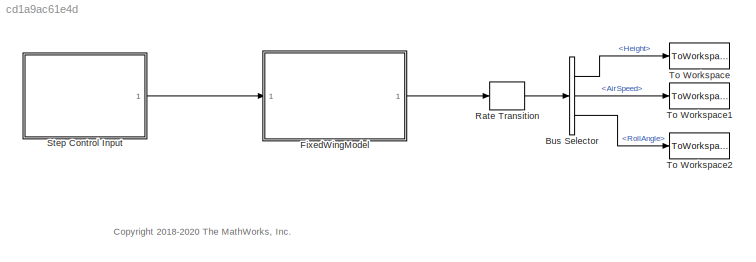
MODEL slx_cd1a9ac61e4d
KIND model
BLOCK [BusSelector] Bus Selector
  OutputSignals = Height,AirSpeed,RollAngle
  Ports = [1, 3]
BLOCK [ModelReference] FixedWingModel
  ModelNameDialog = FixedWingModel
  ModelReferenceVersion = 1.27
  Ports = [1, 1]
BLOCK [RateTransition] Rate Transition
  OutPortSampleTime = 0.1
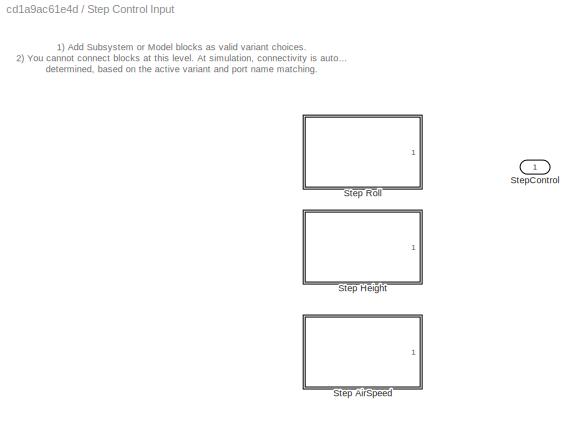
BLOCK [SubSystem] Step Control Input
  LabelModeActiveChoice = StepRollAngle
  Ports = [0, 1]
  RequestExecContextInheritance = off
  Variant = on
  VariantControlMode = label
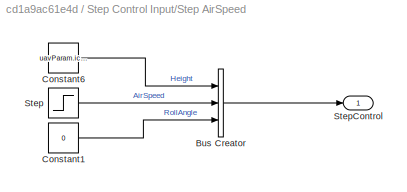
BLOCK [SubSystem] Step Control Input/Step AirSpeed
  Ports = [0, 1]
  RequestExecContextInheritance = off
  VariantControl = StepAirSpeed
BLOCK [BusCreator] Step Control Input/Step AirSpeed/Bus Creator
  DisplayOption = bar
  InheritFromInputs = on
  Inputs = 3
  NonVirtualBus = on
  OutDataTypeStr = Bus: FixedWingControlBus
  Ports = [3, 1]
BLOCK [Constant] Step Control Input/Step AirSpeed/Constant1
  Value = 0
BLOCK [Constant] Step Control Input/Step AirSpeed/Constant6
  Value = uavParam.ic.Pos_0(3)
BLOCK [Step] Step Control Input/Step AirSpeed/Step
  After = 19
  Before = 18
  SampleTime = 0
  Time = TFinal/2
BLOCK [Outport] Step Control Input/Step AirSpeed/StepControl
  VectorParamsAs1DForOutWhenUnconnected = off
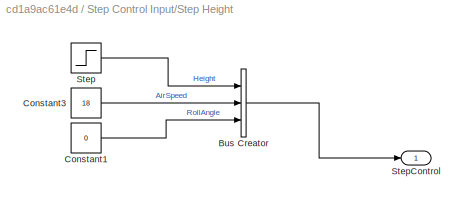
BLOCK [SubSystem] Step Control Input/Step Height
  Ports = [0, 1]
  RequestExecContextInheritance = off
  VariantControl = StepHeight
BLOCK [BusCreator] Step Control Input/Step Height/Bus Creator
  DisplayOption = bar
  InheritFromInputs = on
  Inputs = 3
  NonVirtualBus = on
  OutDataTypeStr = Bus: FixedWingControlBus
  Ports = [3, 1]
BLOCK [Constant] Step Control Input/Step Height/Constant1
  Value = 0
BLOCK [Constant] Step Control Input/Step Height/Constant3
  Value = 18
BLOCK [Step] Step Control Input/Step Height/Step
  After = uavParam.ic.Pos_0(3)+5
  Before = uavParam.ic.Pos_0(3)
  SampleTime = 0
  Time = TFinal/2
BLOCK [Outport] Step Control Input/Step Height/StepControl
  VectorParamsAs1DForOutWhenUnconnected = off
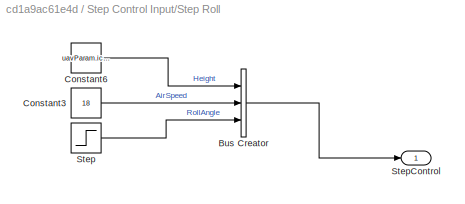
BLOCK [SubSystem] Step Control Input/Step Roll
  Ports = [0, 1]
  RequestExecContextInheritance = off
  VariantControl = StepRollAngle
BLOCK [BusCreator] Step Control Input/Step Roll/Bus Creator
  DisplayOption = bar
  InheritFromInputs = on
  Inputs = 3
  NonVirtualBus = on
  OutDataTypeStr = Bus: FixedWingControlBus
  Ports = [3, 1]
BLOCK [Constant] Step Control Input/Step Roll/Constant3
  Value = 18
BLOCK [Constant] Step Control Input/Step Roll/Constant6
  Value = uavParam.ic.Pos_0(3)
BLOCK [Step] Step Control Input/Step Roll/Step
  After = pi/6
  SampleTime = 0
  Time = TFinal/2
BLOCK [Outport] Step Control Input/Step Roll/StepControl
  VectorParamsAs1DForOutWhenUnconnected = off
BLOCK [Outport] Step Control Input/StepControl
  VectorParamsAs1DForOutWhenUnconnected = off
BLOCK [ToWorkspace] To Workspace
  FixptAsFi = on
  MaxDataPoints = inf
  Ports = [1]
  SampleTime = -1
  SaveFormat = Timeseries
  VariableName = Height
BLOCK [ToWorkspace] To Workspace1
  FixptAsFi = on
  MaxDataPoints = inf
  Ports = [1]
  SampleTime = -1
  SaveFormat = Timeseries
  VariableName = AirSpeed
BLOCK [ToWorkspace] To Workspace2
  FixptAsFi = on
  MaxDataPoints = inf
  Ports = [1]
  SampleTime = -1
  SaveFormat = Timeseries
  VariableName = RollAngle
ANNOTATION (root): <copyright redacted>
ANNOTATION Step Control Input: 1) Add Subsystem or Model blocks as valid variant choices. 2) You cannot connect blocks at this level. At simulation, connectivity is automatically determined, based on the active variant and port name matching.
LINE Bus Selector:1 -> To Workspace:1
LINE Bus Selector:2 -> To Workspace1:1
LINE Bus Selector:3 -> To Workspace2:1
LINE FixedWingModel:1 -> Rate Transition:1
LINE Rate Transition:1 -> Bus Selector:1
LINE Step Control Input/Step AirSpeed/Bus Creator:1 -> Step Control Input/Step AirSpeed/StepControl:1
LINE Step Control Input/Step AirSpeed/Constant1:1 -> Step Control Input/Step AirSpeed/Bus Creator:3
LINE Step Control Input/Step AirSpeed/Constant6:1 -> Step Control Input/Step AirSpeed/Bus Creator:1
LINE Step Control Input/Step AirSpeed/Step:1 -> Step Control Input/Step AirSpeed/Bus Creator:2
LINE Step Control Input/Step Height/Bus Creator:1 -> Step Control Input/Step Height/StepControl:1
LINE Step Control Input/Step Height/Constant1:1 -> Step Control Input/Step Height/Bus Creator:3
LINE Step Control Input/Step Height/Constant3:1 -> Step Control Input/Step Height/Bus Creator:2
LINE Step Control Input/Step Height/Step:1 -> Step Control Input/Step Height/Bus Creator:1
LINE Step Control Input/Step Roll/Bus Creator:1 -> Step Control Input/Step Roll/StepControl:1
LINE Step Control Input/Step Roll/Constant3:1 -> Step Control Input/Step Roll/Bus Creator:2
LINE Step Control Input/Step Roll/Constant6:1 -> Step Control Input/Step Roll/Bus Creator:1
LINE Step Control Input/Step Roll/Step:1 -> Step Control Input/Step Roll/Bus Creator:3
LINE Step Control Input:1 -> FixedWingModel:1
